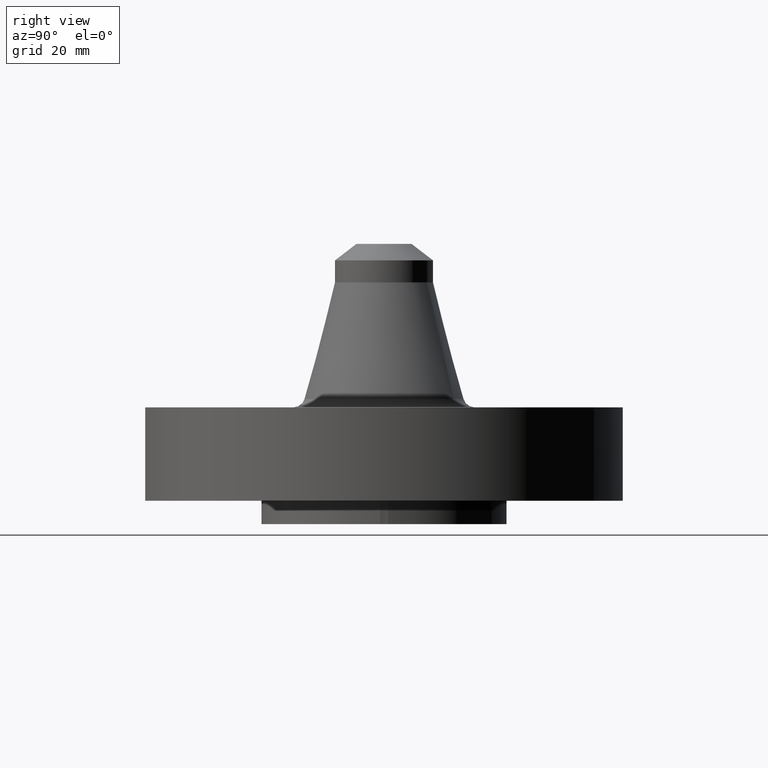
[diagram: clean part render]
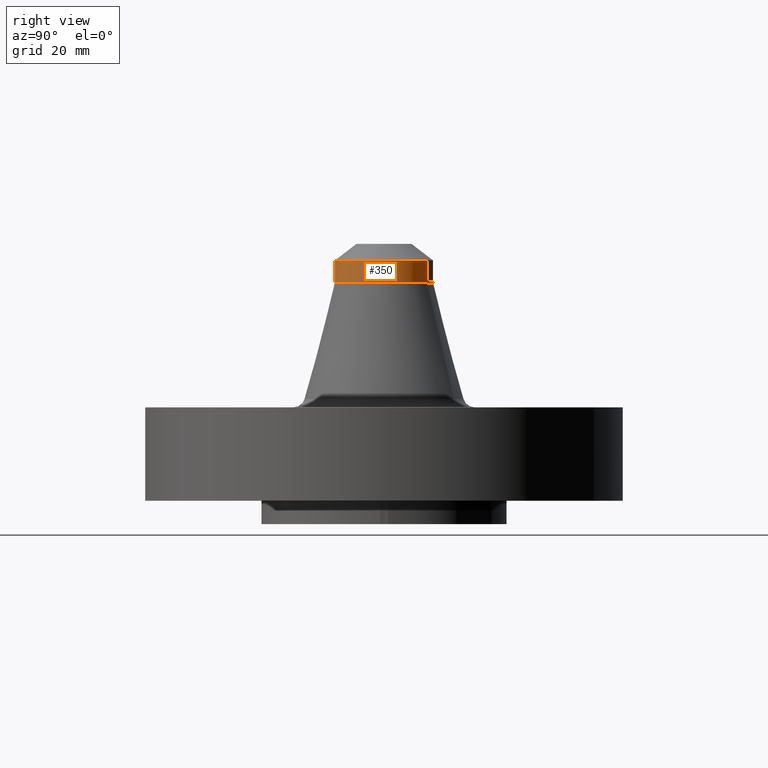
[diagram: same view with one face highlighted and labeled with its STEP entity id]
A machine part, right view. The second image highlights one B-rep face of the part: STEP entity #350.
In plain terms, the highlighted cylindrical surface (partial cylindrical patch) has radius 13.335 mm, axis along (0, 0, -1).
Its self-contained STEP definition (entity closure, byte-faithful):
#283=AXIS2_PLACEMENT_3D('Circle Axis2P3D',#281,#282,$) ;
#315=AXIS2_PLACEMENT_3D('Cylinder Axis2P3D',#312,#313,#314) ;
#333=AXIS2_PLACEMENT_3D('Circle Axis2P3D',#331,#332,$) ;
#340=AXIS2_PLACEMENT_3D('Circle Axis2P3D',#338,#339,$) ;
#278=CARTESIAN_POINT('Vertex',(0.251698407768,0.460730844994,2.33786226314)) ;
#281=CARTESIAN_POINT('Axis2P3D Location',(0.,0.,2.33786226314)) ;
#285=CARTESIAN_POINT('Vertex',(-0.251698407768,-0.460730844994,2.33786226314)) ;
#312=CARTESIAN_POINT('Axis2P3D Location',(0.,0.,1.25)) ;
#317=CARTESIAN_POINT('Line Origine',(-0.251698407768,-0.460730844994,2.45597249936)) ;
#321=CARTESIAN_POINT('Vertex',(-0.251698407768,-0.460730844994,2.57408273558)) ;
#324=CARTESIAN_POINT('Line Origine',(0.251698407768,0.460730844994,2.45597249936)) ;
#328=CARTESIAN_POINT('Vertex',(0.251698407768,0.460730844994,2.57408273558)) ;
#331=CARTESIAN_POINT('Axis2P3D Location',(0.,0.,2.57408273558)) ;
#335=CARTESIAN_POINT('Vertex',(0.251698407768,-0.460730844994,2.57408273558)) ;
#338=CARTESIAN_POINT('Axis2P3D Location',(0.,0.,2.57408273558)) ;
#282=DIRECTION('Axis2P3D Direction',(0.,0.,-0.0393700787402)) ;
#313=DIRECTION('Axis2P3D Direction',(0.,0.,-0.0393700787402)) ;
#314=DIRECTION('Axis2P3D XDirection',(-0.0188750212049,-0.0345504945626,0.)) ;
#318=DIRECTION('Vector Direction',(0.,0.,-0.0393700787402)) ;
#325=DIRECTION('Vector Direction',(0.,0.,-0.0393700787402)) ;
#332=DIRECTION('Axis2P3D Direction',(0.,0.,-0.0393700787402)) ;
#339=DIRECTION('Axis2P3D Direction',(0.,0.,-0.0393700787402)) ;
#319=VECTOR('Line Direction',#318,0.0393700787402) ;
#326=VECTOR('Line Direction',#325,0.0393700787402) ;
#344=ORIENTED_EDGE('',*,*,#323,.F.) ;
#345=ORIENTED_EDGE('',*,*,#287,.F.) ;
#346=ORIENTED_EDGE('',*,*,#330,.T.) ;
#347=ORIENTED_EDGE('',*,*,#337,.F.) ;
#348=ORIENTED_EDGE('',*,*,#342,.T.) ;
#350=ADVANCED_FACE('PartBody',(#349),#316,.T.) ;
#284=CIRCLE('generated circle',#283,0.525000000002) ;
#334=CIRCLE('generated circle',#333,0.525000000002) ;
#341=CIRCLE('generated circle',#340,0.525000000002) ;
#316=CYLINDRICAL_SURFACE('generated cylinder',#315,0.525000000002) ;
#287=EDGE_CURVE('',#279,#286,#284,.T.) ;
#323=EDGE_CURVE('',#286,#322,#320,.F.) ;
#330=EDGE_CURVE('',#279,#329,#327,.F.) ;
#337=EDGE_CURVE('',#336,#329,#334,.F.) ;
#342=EDGE_CURVE('',#336,#322,#341,.T.) ;
#343=EDGE_LOOP('',(#344,#345,#346,#347,#348)) ;
#349=FACE_OUTER_BOUND('',#343,.T.) ;
#320=LINE('Line',#317,#319) ;
#327=LINE('Line',#324,#326) ;
#279=VERTEX_POINT('',#278) ;
#286=VERTEX_POINT('',#285) ;
#322=VERTEX_POINT('',#321) ;
#329=VERTEX_POINT('',#328) ;
#336=VERTEX_POINT('',#335) ;